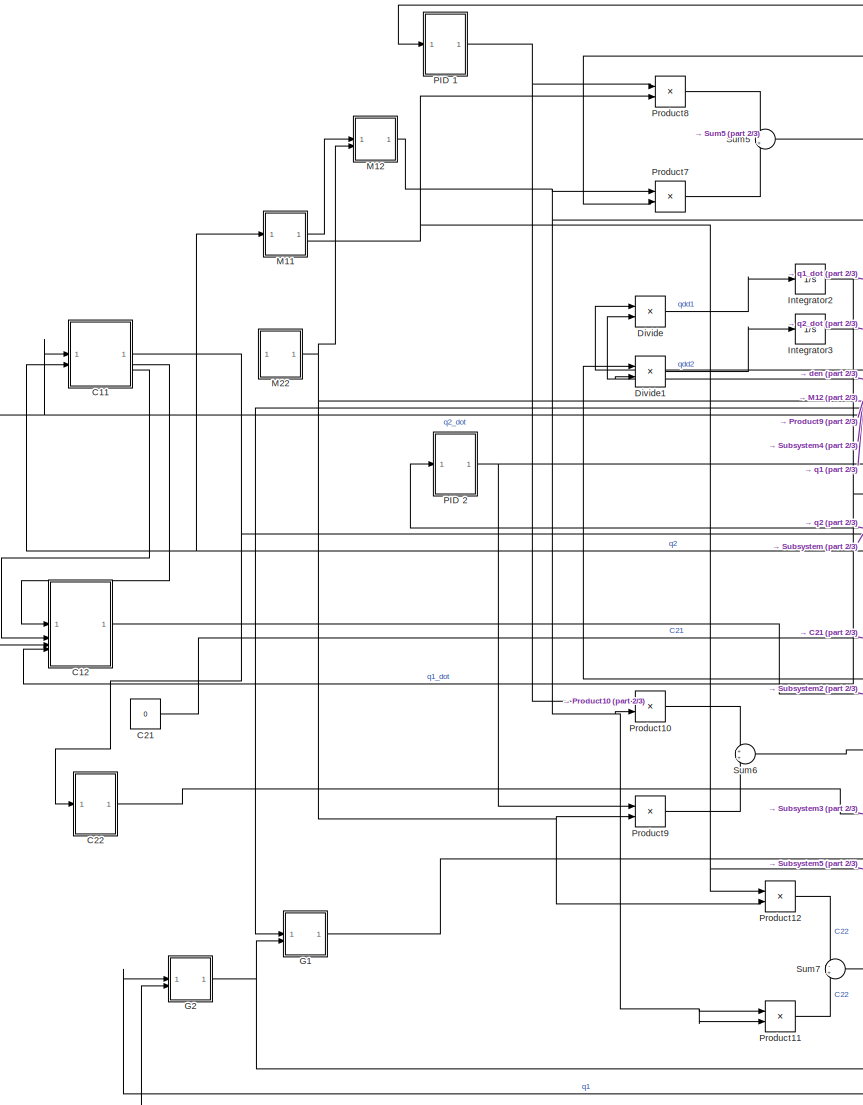
[diagram: root canvas - part 1/3, left side, full height]
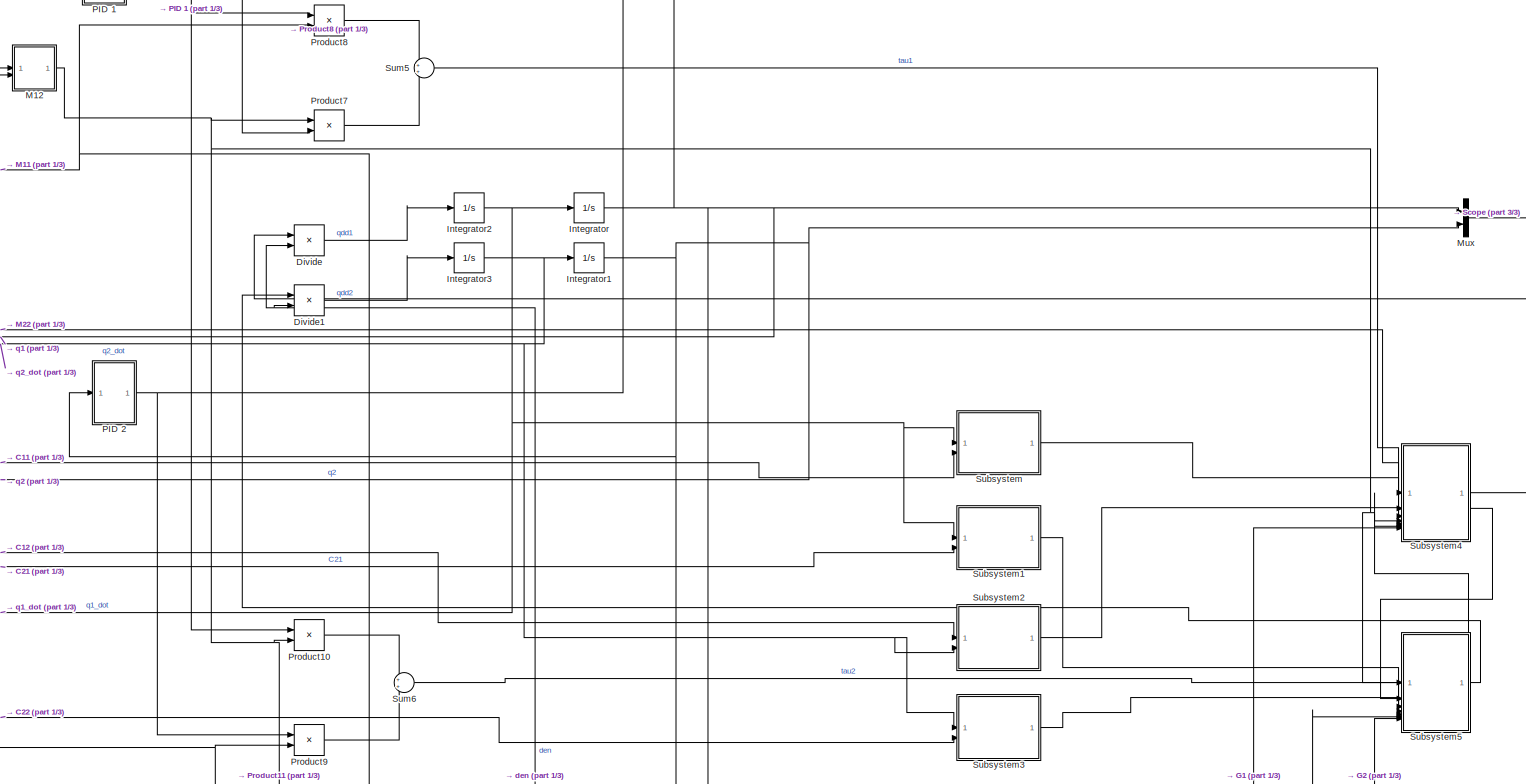
[diagram: root canvas - part 2/3, full width, middle band]
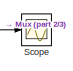
[diagram: root canvas - part 3/3, top right region]
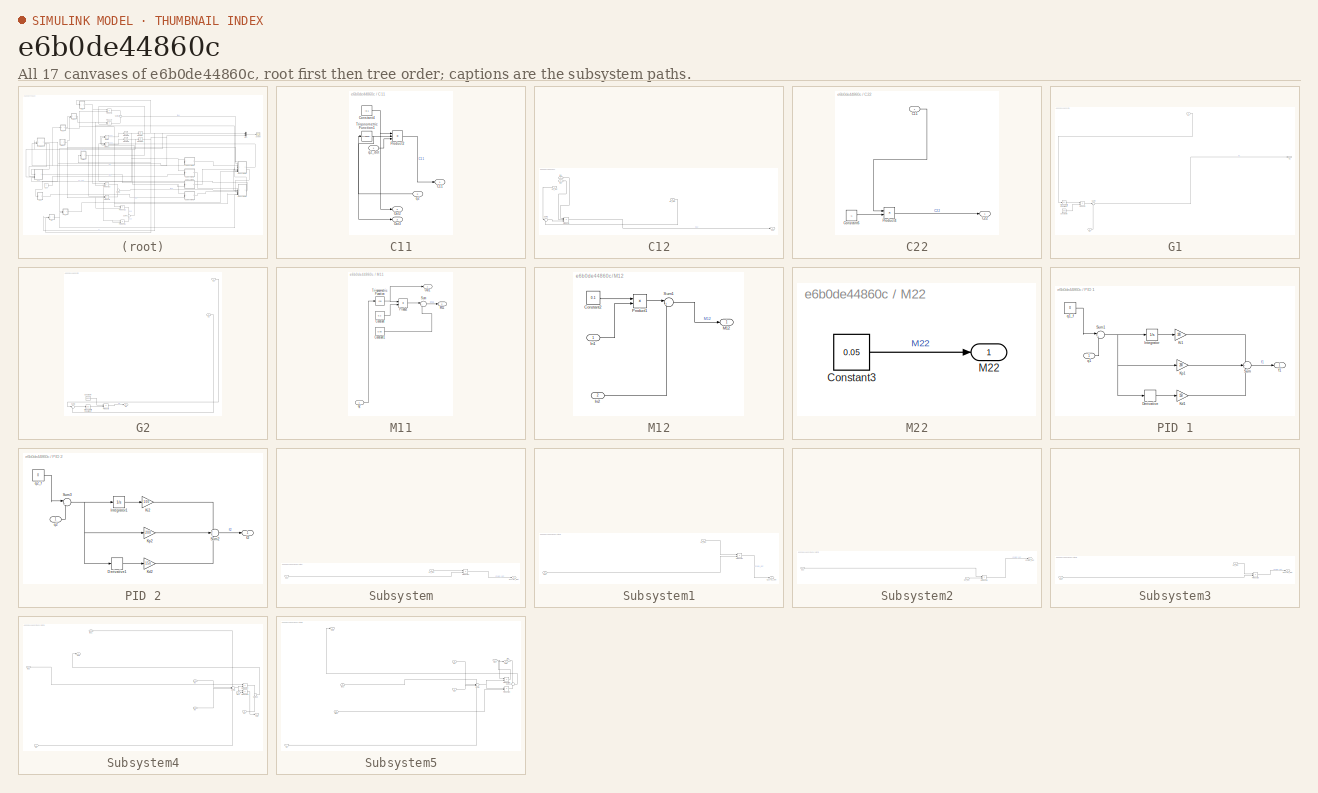
[diagram: thumbnail index - all 17 canvases of the model, root first then tree order]
MODEL slx_e6b0de44860c
KIND model
CONFIG AbsTol = auto
CONFIG EnableMultiTasking = off
CONFIG FixedStep = auto
CONFIG MaxStep = auto
CONFIG MinStep = auto
CONFIG RelTol = 1e-3
CONFIG SampleTimeConstraint = Unconstrained
CONFIG SolverName = VariableStepAuto
CONFIG StartTime = 0.0
CONFIG StopTime = 10
BLOCK [SubSystem] C11
BLOCK [Outport] C11/C11
BLOCK [Constant] C11/Constant4
  Value = -0.1
BLOCK [Outport] C11/Out2
  Port = 2
BLOCK [Outport] C11/Out3
  Port = 3
BLOCK [Product] C11/Product2
  Inputs = 3
BLOCK [Trigonometry] C11/Trigonometric Function1
BLOCK [Inport] C11/q2
  Port = 2
BLOCK [Inport] C11/q2_dot
BLOCK [SubSystem] C12
BLOCK [Outport] C12/C12
BLOCK [Inport] C12/In1
BLOCK [Inport] C12/In2
  Port = 2
BLOCK [Product] C12/Product3
  Inputs = 3
BLOCK [Sum] C12/Sum2
  Inputs = |++
BLOCK [Inport] C12/q1_dot
  Port = 4
BLOCK [Inport] C12/q2_dot
  Port = 3
BLOCK [Constant] C21
  Value = 0
BLOCK [SubSystem] C22
BLOCK [Inport] C22/C11
BLOCK [Outport] C22/C22
BLOCK [Constant] C22/Constant6
  Value = -1
BLOCK [Product] C22/Product4
BLOCK [Product] Divide
  Inputs = */
BLOCK [Product] Divide1
  Inputs = */
BLOCK [SubSystem] G1
BLOCK [Constant] G1/Constant8
  Value = 29.43
BLOCK [Outport] G1/G1
BLOCK [Inport] G1/G2
  Port = 2
BLOCK [Product] G1/Product6
BLOCK [Sum] G1/Sum4
  Inputs = |++
BLOCK [Trigonometry] G1/Trigonometric Function3
  Operator = cos
BLOCK [Inport] G1/q1
BLOCK [SubSystem] G2
BLOCK [Constant] G2/Constant7
  Value = 4.905
BLOCK [Outport] G2/G2
BLOCK [Product] G2/Product5
BLOCK [Sum] G2/Sum3
  Inputs = |++
BLOCK [Trigonometry] G2/Trigonometric Function2
  Operator = cos
BLOCK [Inport] G2/q1
BLOCK [Inport] G2/q2
  Port = 2
BLOCK [Integrator] Integrator
  InitialCondition = 0.1
BLOCK [Integrator] Integrator1
  InitialCondition = 0.1
BLOCK [Integrator] Integrator2
BLOCK [Integrator] Integrator3
BLOCK [SubSystem] M11
BLOCK [Constant] M11/Constant
  Value = 0.2
BLOCK [Constant] M11/Constant1
  Value = 0.65
BLOCK [Outport] M11/M11
  Port = 2
BLOCK [Outport] M11/Out1
BLOCK [Product] M11/Product
BLOCK [Sum] M11/Sum
  Inputs = |++
BLOCK [Trigonometry] M11/Trigonometric Function
  Operator = cos
BLOCK [Inport] M11/q2
BLOCK [SubSystem] M12
BLOCK [Constant] M12/Constant2
  Value = 0.1
BLOCK [Inport] M12/In1
BLOCK [Inport] M12/In2
  Port = 2
BLOCK [Outport] M12/M12
BLOCK [Product] M12/Product1
BLOCK [Sum] M12/Sum1
  Inputs = |++
BLOCK [SubSystem] M22
BLOCK [Constant] M22/Constant3
  Value = 0.05
BLOCK [Outport] M22/M22
BLOCK [Mux] Mux
  DisplayOption = bar
  Inputs = 2
BLOCK [SubSystem] PID 1
BLOCK [Derivative] PID 1/Derivative
BLOCK [Integrator] PID 1/Integrator
BLOCK [Gain] PID 1/Kd1
  Gain = 150
BLOCK [Gain] PID 1/Ki1
  Gain = 100
BLOCK [Gain] PID 1/Kp1
  Gain = 200
BLOCK [Sum] PID 1/Sum
  Inputs = +++
BLOCK [Sum] PID 1/Sum1
  Inputs = |+-
BLOCK [Outport] PID 1/f1
BLOCK [Inport] PID 1/q1
BLOCK [Constant] PID 1/q1_f
  Value = 0
BLOCK [SubSystem] PID 2
BLOCK [Derivative] PID 2/Derivative1
BLOCK [Integrator] PID 2/Integrator1
BLOCK [Gain] PID 2/Kd2
  Gain = 150
BLOCK [Gain] PID 2/Ki2
  Gain = 100
BLOCK [Gain] PID 2/Kp2
  Gain = 200
BLOCK [Sum] PID 2/Sum2
  Inputs = +++
BLOCK [Sum] PID 2/Sum3
  Inputs = |+-
BLOCK [Outport] PID 2/f2
BLOCK [Inport] PID 2/q2
BLOCK [Constant] PID 2/q2_f
  Value = 0
BLOCK [Product] Product10
BLOCK [Product] Product11
BLOCK [Product] Product12
BLOCK [Product] Product7
BLOCK [Product] Product8
BLOCK [Product] Product9
BLOCK [Scope] Scope
  Floating = off
  NumInputPorts = 1
  ScopeSpecificationString = Simulink.scopes.TimeScopeBlockCfg('CurrentConfiguration', extmgr.ConfigurationSet(extmgr.Configuration('Core','General UI',true),extmgr.Configuration('Core','Source UI',true),extmgr.Configuration('Sources','WiredSimulink',true),extmgr.Configuration('Visuals','Time Domain',true,'SerializedDisplays',{struct('MinYLimReal','-0.21036','MaxYLimReal','0.21041','YLabelReal','','MinYLimMag','0.00000','MaxY...<+1364ch>
BLOCK [SubSystem] Subsystem
BLOCK [Inport] Subsystem/C11
  Port = 2
BLOCK [Outport] Subsystem/C11*q1_dot
BLOCK [Product] Subsystem/Product13
BLOCK [Inport] Subsystem/q1_dot
BLOCK [SubSystem] Subsystem1
BLOCK [Inport] Subsystem1/C21
  Port = 2
BLOCK [Outport] Subsystem1/C21*q1_dot
BLOCK [Product] Subsystem1/Product14
BLOCK [Inport] Subsystem1/q1_dot
BLOCK [SubSystem] Subsystem2
BLOCK [Inport] Subsystem2/C12
BLOCK [Outport] Subsystem2/C12*q2_dot
BLOCK [Product] Subsystem2/Product15
BLOCK [Inport] Subsystem2/q2_dot
  Port = 2
BLOCK [SubSystem] Subsystem3
BLOCK [Inport] Subsystem3/C22
  Port = 2
BLOCK [Outport] Subsystem3/C22*q2_dot
BLOCK [Product] Subsystem3/Product16
BLOCK [Inport] Subsystem3/q2_dot
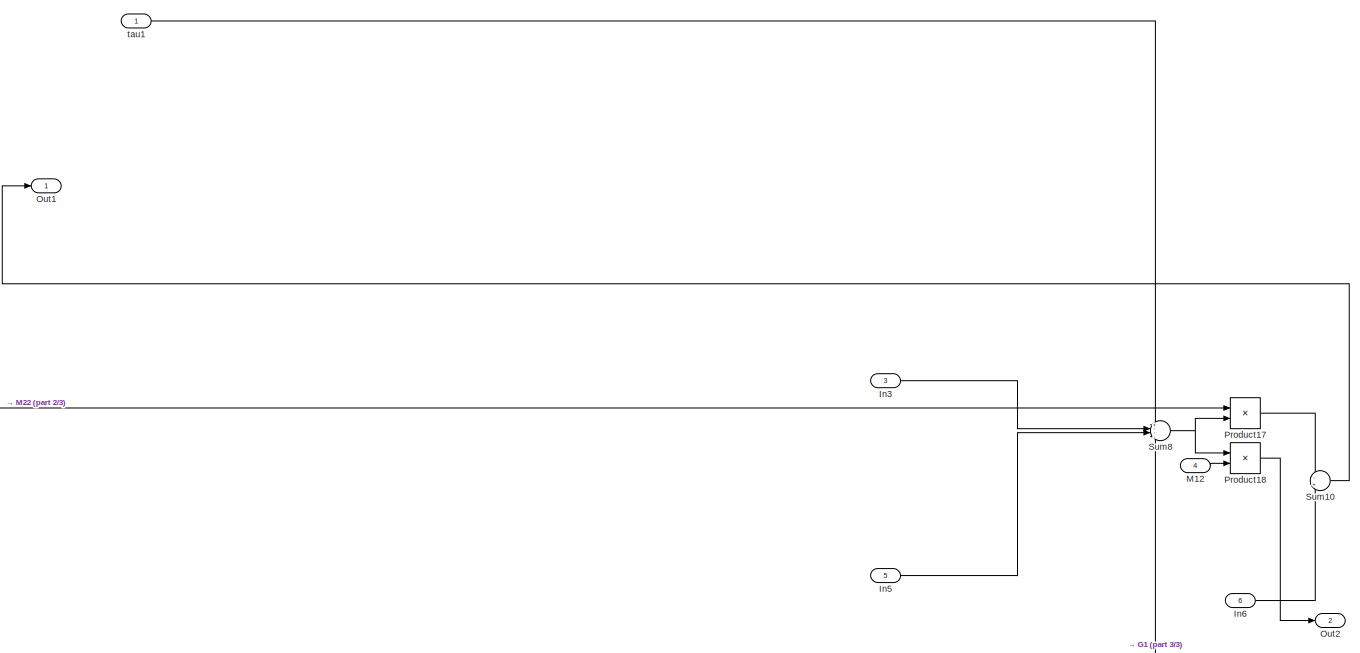
[diagram: Subsystem4 - part 1/3, full width, middle band]
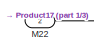
[diagram: Subsystem4 - part 2/3, middle left region]
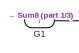
[diagram: Subsystem4 - part 3/3, bottom left region]
BLOCK [SubSystem] Subsystem4
BLOCK [Inport] Subsystem4/G1
  Port = 7
BLOCK [Inport] Subsystem4/In3
  Port = 3
BLOCK [Inport] Subsystem4/In5
  Port = 5
BLOCK [Inport] Subsystem4/In6
  Port = 6
BLOCK [Inport] Subsystem4/M12
  Port = 4
BLOCK [Inport] Subsystem4/M22
  Port = 2
BLOCK [Outport] Subsystem4/Out1
BLOCK [Outport] Subsystem4/Out2
  Port = 2
BLOCK [Product] Subsystem4/Product17
BLOCK [Product] Subsystem4/Product18
BLOCK [Sum] Subsystem4/Sum10
  Inputs = -+
BLOCK [Sum] Subsystem4/Sum8
  Inputs = +---
BLOCK [Inport] Subsystem4/tau1
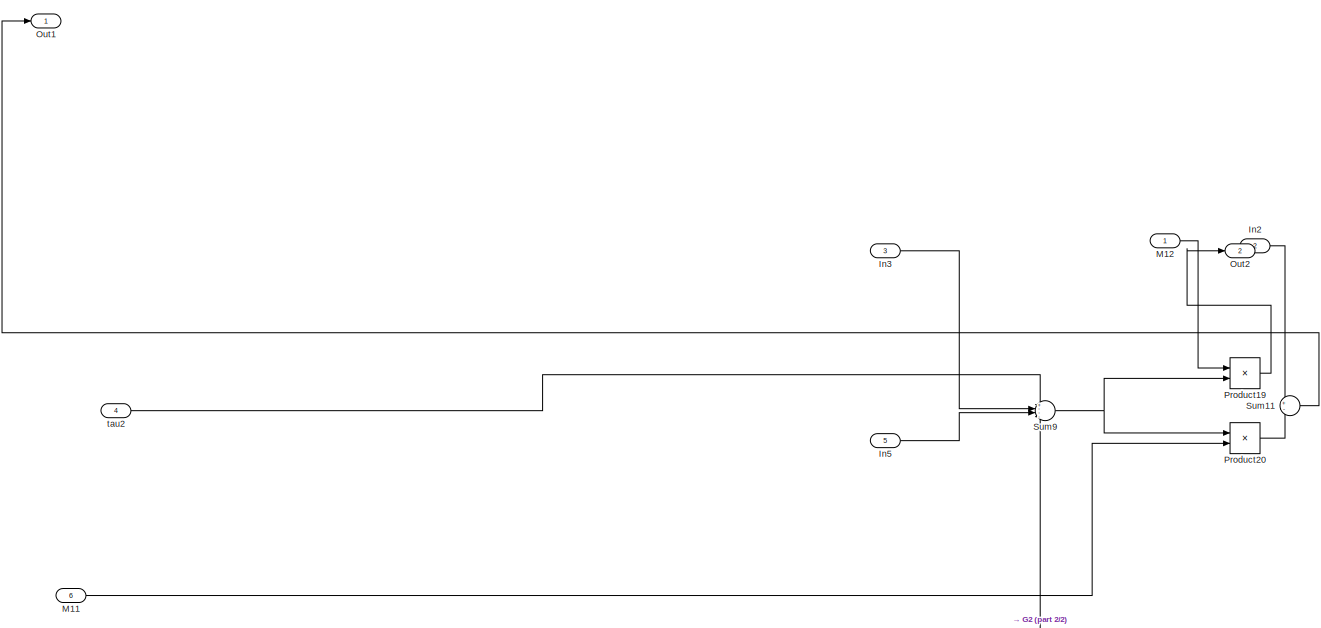
[diagram: Subsystem5 - part 1/2, full width, middle band]
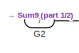
[diagram: Subsystem5 - part 2/2, bottom left region]
BLOCK [SubSystem] Subsystem5
BLOCK [Inport] Subsystem5/G2
  Port = 7
BLOCK [Inport] Subsystem5/In2
  Port = 2
BLOCK [Inport] Subsystem5/In3
  Port = 3
BLOCK [Inport] Subsystem5/In5
  Port = 5
BLOCK [Inport] Subsystem5/M11
  Port = 6
BLOCK [Inport] Subsystem5/M12
BLOCK [Outport] Subsystem5/Out1
BLOCK [Outport] Subsystem5/Out2
  Port = 2
BLOCK [Product] Subsystem5/Product19
BLOCK [Product] Subsystem5/Product20
BLOCK [Sum] Subsystem5/Sum11
  Inputs = +-
BLOCK [Sum] Subsystem5/Sum9
  Inputs = +---
BLOCK [Inport] Subsystem5/tau2
  Port = 4
BLOCK [Sum] Sum5
BLOCK [Sum] Sum6
BLOCK [Sum] Sum7
  Inputs = -+
NET C11/Constant4:1 -> C11/Out2:1, C11/Product2:1
LINE C11/Product2:1 -> C11/C11:1
NET C11/Trigonometric Function1:1 -> C11/Out3:1, C11/Product2:2
LINE C11/q2:1 -> C11/Trigonometric Function1:1
LINE C11/q2_dot:1 -> C11/Product2:3
NET C11:1 -> C22:1, Subsystem:2
LINE C11:2 -> C12:1
LINE C11:3 -> C12:2
LINE C12/In1:1 -> C12/Product3:1
LINE C12/In2:1 -> C12/Product3:2
LINE C12/Product3:1 -> C12/C12:1
LINE C12/Sum2:1 -> C12/Product3:3
LINE C12/q1_dot:1 -> C12/Sum2:2
LINE C12/q2_dot:1 -> C12/Sum2:1
LINE C12:1 -> Subsystem2:1
LINE C21:1 -> Subsystem1:2
LINE C22/C11:1 -> C22/Product4:1
LINE C22/Constant6:1 -> C22/Product4:2
LINE C22/Product4:1 -> C22/C22:1
LINE C22:1 -> Subsystem3:2
LINE Divide1:1 -> Integrator3:1
LINE Divide:1 -> Integrator2:1
LINE G1/Constant8:1 -> G1/Product6:2
LINE G1/G2:1 -> G1/Sum4:2
LINE G1/Product6:1 -> G1/Sum4:1
LINE G1/Sum4:1 -> G1/G1:1
LINE G1/Trigonometric Function3:1 -> G1/Product6:1
LINE G1/q1:1 -> G1/Trigonometric Function3:1
LINE G1:1 -> Subsystem4:7
LINE G2/Constant7:1 -> G2/Product5:1
LINE G2/Product5:1 -> G2/G2:1
LINE G2/Sum3:1 -> G2/Trigonometric Function2:1
LINE G2/Trigonometric Function2:1 -> G2/Product5:2
LINE G2/q1:1 -> G2/Sum3:1
LINE G2/q2:1 -> G2/Sum3:2
NET G2:1 -> G1:2, Subsystem5:7
NET Integrator1:1 -> C11:2, G2:2, M11:1, Mux:2, PID 2:1
NET Integrator2:1 -> C12:4, Integrator:1, Subsystem1:1, Subsystem:1
NET Integrator3:1 -> C11:1, C12:3, Integrator1:1, Subsystem2:2, Subsystem3:1
NET Integrator:1 -> G1:1, G2:1, Mux:1, PID 1:1
LINE M11/Constant1:1 -> M11/Sum:2
LINE M11/Constant:1 -> M11/Product:2
LINE M11/Product:1 -> M11/Sum:1
LINE M11/Sum:1 -> M11/M11:1
NET M11/Trigonometric Function:1 -> M11/Out1:1, M11/Product:1
LINE M11/q2:1 -> M11/Trigonometric Function:1
LINE M11:1 -> M12:1
NET M11:2 -> Product12:1, Product8:2, Subsystem5:6
LINE M12/Constant2:1 -> M12/Product1:1
LINE M12/In1:1 -> M12/Product1:2
LINE M12/In2:1 -> M12/Sum1:2
LINE M12/Product1:1 -> M12/Sum1:1
LINE M12/Sum1:1 -> M12/M12:1
NET M12:1 -> Product10:2, Product11:1, Product11:2, Product7:1, Subsystem4:4, Subsystem5:1
LINE M22/Constant3:1 -> M22/M22:1
NET M22:1 -> M12:2, Product12:2, Product9:2, Subsystem4:2
LINE Mux:1 -> Scope:1
LINE PID 1/Derivative:1 -> PID 1/Kd1:1
LINE PID 1/Integrator:1 -> PID 1/Ki1:1
LINE PID 1/Kd1:1 -> PID 1/Sum:3
LINE PID 1/Ki1:1 -> PID 1/Sum:1
LINE PID 1/Kp1:1 -> PID 1/Sum:2
NET PID 1/Sum1:1 -> PID 1/Derivative:1, PID 1/Integrator:1, PID 1/Kp1:1
LINE PID 1/Sum:1 -> PID 1/f1:1
LINE PID 1/q1:1 -> PID 1/Sum1:2
LINE PID 1/q1_f:1 -> PID 1/Sum1:1
NET PID 1:1 -> Product10:1, Product8:1
LINE PID 2/Derivative1:1 -> PID 2/Kd2:1
LINE PID 2/Integrator1:1 -> PID 2/Ki2:1
LINE PID 2/Kd2:1 -> PID 2/Sum2:3
LINE PID 2/Ki2:1 -> PID 2/Sum2:1
LINE PID 2/Kp2:1 -> PID 2/Sum2:2
LINE PID 2/Sum2:1 -> PID 2/f2:1
NET PID 2/Sum3:1 -> PID 2/Derivative1:1, PID 2/Integrator1:1, PID 2/Kp2:1
LINE PID 2/q2:1 -> PID 2/Sum3:2
LINE PID 2/q2_f:1 -> PID 2/Sum3:1
NET PID 2:1 -> Product7:2, Product9:1
LINE Product10:1 -> Sum6:1
LINE Product11:1 -> Sum7:2
LINE Product12:1 -> Sum7:1
LINE Product7:1 -> Sum5:2
LINE Product8:1 -> Sum5:1
LINE Product9:1 -> Sum6:2
LINE Subsystem/C11:1 -> Subsystem/Product13:2
LINE Subsystem/Product13:1 -> Subsystem/C11*q1_dot:1
LINE Subsystem/q1_dot:1 -> Subsystem/Product13:1
LINE Subsystem1/C21:1 -> Subsystem1/Product14:2
LINE Subsystem1/Product14:1 -> Subsystem1/C21*q1_dot:1
LINE Subsystem1/q1_dot:1 -> Subsystem1/Product14:1
LINE Subsystem1:1 -> Subsystem5:3
LINE Subsystem2/C12:1 -> Subsystem2/Product15:1
LINE Subsystem2/Product15:1 -> Subsystem2/C12*q2_dot:1
LINE Subsystem2/q2_dot:1 -> Subsystem2/Product15:2
LINE Subsystem2:1 -> Subsystem4:5
LINE Subsystem3/C22:1 -> Subsystem3/Product16:2
LINE Subsystem3/Product16:1 -> Subsystem3/C22*q2_dot:1
LINE Subsystem3/q2_dot:1 -> Subsystem3/Product16:1
LINE Subsystem3:1 -> Subsystem5:5
LINE Subsystem4/G1:1 -> Subsystem4/Sum8:4
LINE Subsystem4/In3:1 -> Subsystem4/Sum8:2
LINE Subsystem4/In5:1 -> Subsystem4/Sum8:3
LINE Subsystem4/In6:1 -> Subsystem4/Sum10:2
LINE Subsystem4/M12:1 -> Subsystem4/Product18:2
LINE Subsystem4/M22:1 -> Subsystem4/Product17:1
LINE Subsystem4/Product17:1 -> Subsystem4/Sum10:1
LINE Subsystem4/Product18:1 -> Subsystem4/Out2:1
LINE Subsystem4/Sum10:1 -> Subsystem4/Out1:1
NET Subsystem4/Sum8:1 -> Subsystem4/Product17:2, Subsystem4/Product18:1
LINE Subsystem4/tau1:1 -> Subsystem4/Sum8:1
LINE Subsystem4:1 -> Divide:1
LINE Subsystem4:2 -> Subsystem5:2
LINE Subsystem5/G2:1 -> Subsystem5/Sum9:4
LINE Subsystem5/In2:1 -> Subsystem5/Sum11:1
LINE Subsystem5/In3:1 -> Subsystem5/Sum9:2
LINE Subsystem5/In5:1 -> Subsystem5/Sum9:3
LINE Subsystem5/M11:1 -> Subsystem5/Product20:2
LINE Subsystem5/M12:1 -> Subsystem5/Product19:1
LINE Subsystem5/Product19:1 -> Subsystem5/Out2:1
LINE Subsystem5/Product20:1 -> Subsystem5/Sum11:2
LINE Subsystem5/Sum11:1 -> Subsystem5/Out1:1
NET Subsystem5/Sum9:1 -> Subsystem5/Product19:2, Subsystem5/Product20:1
LINE Subsystem5/tau2:1 -> Subsystem5/Sum9:1
LINE Subsystem5:1 -> Divide1:1
LINE Subsystem5:2 -> Subsystem4:6
LINE Subsystem:1 -> Subsystem4:3
LINE Sum5:1 -> Subsystem4:1
LINE Sum6:1 -> Subsystem5:4
NET Sum7:1 -> Divide1:2, Divide:2
note: NET lines group one-source signal fan-out (src -> all destinations, sorted); 1:1 wires keep LINE
